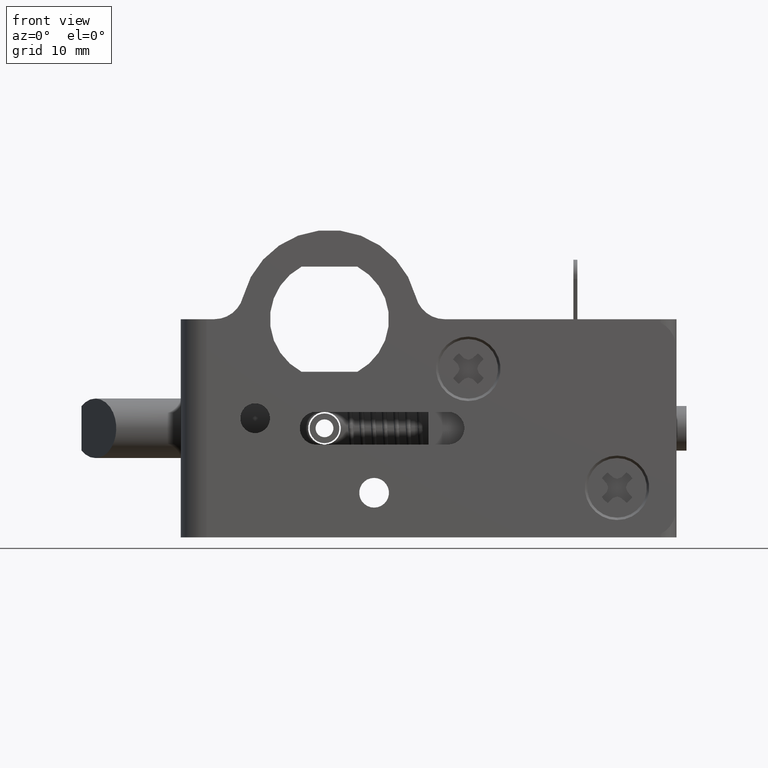
[diagram: clean part render]
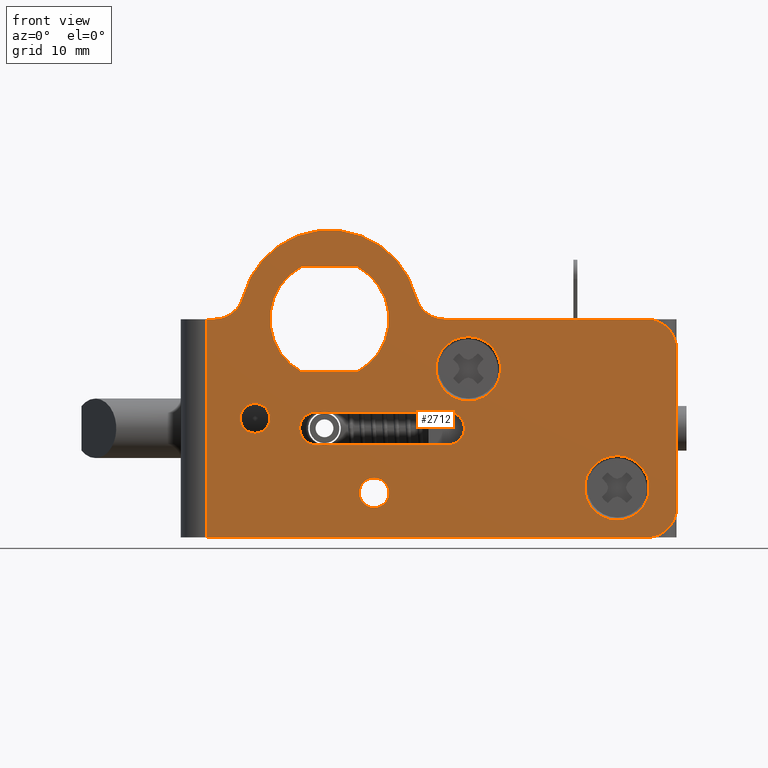
[diagram: same view with one face highlighted and labeled with its STEP entity id]
A machine part, front view. The second image highlights one B-rep face of the part: STEP entity #2712.
In plain terms, the highlighted planar face has unit normal (0, 1, 0).
Its self-contained STEP definition (entity closure, byte-faithful):
#9 = CARTESIAN_POINT ( 'NONE',  ( 14.00000000000000000, 0.0000000000000000000, -5.000000000000000000 ) ) ;
#13 = VERTEX_POINT ( 'NONE', #1386 ) ;
#219 = AXIS2_PLACEMENT_3D ( 'NONE', #4498, #10212, #5307 ) ;
#226 = VECTOR ( 'NONE', #830, 1000.000000000000000 ) ;
#254 = EDGE_CURVE ( 'NONE', #3641, #1145, #8044, .T. ) ;
#270 = DIRECTION ( 'NONE',  ( -0.0000000000000000000, -1.000000000000000000, -0.0000000000000000000 ) ) ;
#278 = CARTESIAN_POINT ( 'NONE',  ( -1.345540284950500000, -2.842170943040399500E-014, -12.64999400000002100 ) ) ;
#335 = CARTESIAN_POINT ( 'NONE',  ( 11.95001300000000000, 0.0000000000000000000, -11.00000000000000000 ) ) ;
#438 = VERTEX_POINT ( 'NONE', #899 ) ;
#482 = CARTESIAN_POINT ( 'NONE',  ( 0.0000000000000000000, 0.0000000000000000000, 0.0000000000000000000 ) ) ;
#485 = CIRCLE ( 'NONE', #7786, 1.650000000000000400 ) ;
#506 = CARTESIAN_POINT ( 'NONE',  ( 0.0000000000000000000, -2.842170943040399500E-014, -12.64999400000002100 ) ) ;
#512 = VERTEX_POINT ( 'NONE', #7134 ) ;
#518 = FACE_BOUND ( 'NONE', #7595, .T. ) ;
#560 = CARTESIAN_POINT ( 'NONE',  ( -1.349990000000000000, 0.0000000000000000000, -11.00000000000000000 ) ) ;
#635 = DIRECTION ( 'NONE',  ( 0.0000000000000000000, 0.0000000000000000000, 1.000000000000000000 ) ) ;
#641 = CARTESIAN_POINT ( 'NONE',  ( 4.499999999999944900, 0.0000000000000000000, -17.50000000000000000 ) ) ;
#652 = CARTESIAN_POINT ( 'NONE',  ( 11.95001300000000000, 0.0000000000000000000, -11.00000000000000000 ) ) ;
#676 = VERTEX_POINT ( 'NONE', #6847 ) ;
#680 = LINE ( 'NONE', #4792, #9325 ) ;
#727 = VERTEX_POINT ( 'NONE', #3662 ) ;
#753 = CARTESIAN_POINT ( 'NONE',  ( 29.00000000000000000, 2.168404344971008900E-016, -20.24999999999999600 ) ) ;
#793 = CARTESIAN_POINT ( 'NONE',  ( -7.499991999999999800, 0.0000000000000000000, -11.50000000000000000 ) ) ;
#830 = DIRECTION ( 'NONE',  ( -1.000000000000000000, -0.0000000000000000000, -0.0000000000000000000 ) ) ;
#855 = DIRECTION ( 'NONE',  ( 0.0000000000000000000, 0.0000000000000000000, -1.000000000000000000 ) ) ;
#863 = CARTESIAN_POINT ( 'NONE',  ( 11.95001300000000000, 0.0000000000000000000, -11.00000000000000000 ) ) ;
#899 = CARTESIAN_POINT ( 'NONE',  ( 11.61895784292025800, 0.0000000000000000000, 3.996802888650565100E-015 ) ) ;
#942 = EDGE_CURVE ( 'NONE', #9312, #4003, #3447, .T. ) ;
#970 = VERTEX_POINT ( 'NONE', #753 ) ;
#1003 = DIRECTION ( 'NONE',  ( -0.0000000000000000000, -1.000000000000000000, -0.0000000000000000000 ) ) ;
#1014 = CIRCLE ( 'NONE', #6719, 1.500000000000001300 ) ;
#1048 = ORIENTED_EDGE ( 'NONE', *, *, #942, .T. ) ;
#1081 = ORIENTED_EDGE ( 'NONE', *, *, #2394, .T. ) ;
#1145 = VERTEX_POINT ( 'NONE', #4347 ) ;
#1158 = ORIENTED_EDGE ( 'NONE', *, *, #254, .F. ) ;
#1166 = CIRCLE ( 'NONE', #8152, 3.000000000000000000 ) ;
#1167 = CARTESIAN_POINT ( 'NONE',  ( 2.812472222085044700, -2.842170943040399500E-014, 5.299999999999999800 ) ) ;
#1176 = DIRECTION ( 'NONE',  ( 0.0000000000000000000, 0.0000000000000000000, 1.000000000000000000 ) ) ;
#1200 = AXIS2_PLACEMENT_3D ( 'NONE', #10357, #5449, #635 ) ;
#1218 = EDGE_CURVE ( 'NONE', #5441, #3641, #4946, .T. ) ;
#1309 = DIRECTION ( 'NONE',  ( 0.0000000000000000000, 0.0000000000000000000, 1.000000000000000000 ) ) ;
#1330 = DIRECTION ( 'NONE',  ( 1.000000000000000000, -0.0000000000000000000, -0.0000000000000000000 ) ) ;
#1345 = EDGE_CURVE ( 'NONE', #2271, #4522, #1809, .T. ) ;
#1380 = DIRECTION ( 'NONE',  ( 0.0000000000000000000, 0.0000000000000000000, 1.000000000000000000 ) ) ;
#1386 = CARTESIAN_POINT ( 'NONE',  ( 14.00000000000000000, 2.168404344971008900E-016, -1.750000000000002000 ) ) ;
#1440 = VERTEX_POINT ( 'NONE', #2792 ) ;
#1461 = DIRECTION ( 'NONE',  ( 0.0000000000000000000, 0.0000000000000000000, 1.000000000000000000 ) ) ;
#1474 = DIRECTION ( 'NONE',  ( 0.0000000000000000000, 0.0000000000000000000, 1.000000000000000000 ) ) ;
#1497 = ORIENTED_EDGE ( 'NONE', *, *, #10457, .F. ) ;
#1537 = DIRECTION ( 'NONE',  ( 1.000000000000000000, -0.0000000000000000000, -0.0000000000000000000 ) ) ;
#1548 = AXIS2_PLACEMENT_3D ( 'NONE', #2745, #8418, #3542 ) ;
#1600 = VECTOR ( 'NONE', #6092, 1000.000000000000000 ) ;
#1674 = DIRECTION ( 'NONE',  ( 0.0000000000000000000, 0.0000000000000000000, 1.000000000000000000 ) ) ;
#1728 = LINE ( 'NONE', #8530, #5984 ) ;
#1806 = CARTESIAN_POINT ( 'NONE',  ( 0.0000000000000000000, 0.0000000000000000000, 0.0000000000000000000 ) ) ;
#1809 = CIRCLE ( 'NONE', #2284, 1.650000000000000400 ) ;
#1841 = EDGE_CURVE ( 'NONE', #9151, #2270, #7377, .T. ) ;
#1858 = ORIENTED_EDGE ( 'NONE', *, *, #8972, .F. ) ;
#1913 = VECTOR ( 'NONE', #2221, 1000.000000000000000 ) ;
#2000 = ORIENTED_EDGE ( 'NONE', *, *, #10530, .F. ) ;
#2096 = LINE ( 'NONE', #506, #3467 ) ;
#2099 = ORIENTED_EDGE ( 'NONE', *, *, #1345, .F. ) ;
#2104 = CARTESIAN_POINT ( 'NONE',  ( -1.349990086393790100, 0.0000000000000000000, -9.350000000000001400 ) ) ;
#2111 = VERTEX_POINT ( 'NONE', #5877 ) ;
#2144 = VERTEX_POINT ( 'NONE', #3498 ) ;
#2160 = AXIS2_PLACEMENT_3D ( 'NONE', #2206, #7874, #3012 ) ;
#2188 = ORIENTED_EDGE ( 'NONE', *, *, #5976, .F. ) ;
#2206 = CARTESIAN_POINT ( 'NONE',  ( 4.499999999999944900, 0.0000000000000000000, -17.50000000000000000 ) ) ;
#2221 = DIRECTION ( 'NONE',  ( -0.0000000000000000000, -0.0000000000000000000, -1.000000000000000000 ) ) ;
#2231 = VERTEX_POINT ( 'NONE', #2104 ) ;
#2270 = VERTEX_POINT ( 'NONE', #3016 ) ;
#2271 = VERTEX_POINT ( 'NONE', #8713 ) ;
#2284 = AXIS2_PLACEMENT_3D ( 'NONE', #560, #6184, #1380 ) ;
#2394 = EDGE_CURVE ( 'NONE', #7376, #4635, #1166, .T. ) ;
#2410 = LINE ( 'NONE', #9737, #226 ) ;
#2526 = CARTESIAN_POINT ( 'NONE',  ( 35.00000000000000000, 0.0000000000000000000, -19.00000000000000000 ) ) ;
#2541 = VERTEX_POINT ( 'NONE', #2526 ) ;
#2545 = CIRCLE ( 'NONE', #3192, 1.650000000000000400 ) ;
#2614 = DIRECTION ( 'NONE',  ( 0.0000000000000000000, 0.0000000000000000000, 1.000000000000000000 ) ) ;
#2672 = FACE_BOUND ( 'NONE', #9596, .T. ) ;
#2676 = EDGE_CURVE ( 'NONE', #4880, #9151, #9424, .T. ) ;
#2686 = ORIENTED_EDGE ( 'NONE', *, *, #6691, .F. ) ;
#2694 = DIRECTION ( 'NONE',  ( 0.0000000000000000000, -1.000000000000000000, 0.0000000000000000000 ) ) ;
#2712 = ADVANCED_FACE ( 'NONE', ( #4813, #5052, #2920, #2672, #518, #8918, #6688 ), #10172, .F. ) ;
#2744 = CARTESIAN_POINT ( 'NONE',  ( 14.00000000000000000, 2.168404344971008900E-016, -8.249999999999998200 ) ) ;
#2745 = CARTESIAN_POINT ( 'NONE',  ( -7.499991999999999800, 0.0000000000000000000, -10.00000000000000000 ) ) ;
#2780 = EDGE_CURVE ( 'NONE', #7376, #2541, #6180, .T. ) ;
#2792 = CARTESIAN_POINT ( 'NONE',  ( 31.99999984292029600, 0.0000000000000000000, -22.00000000000000000 ) ) ;
#2872 = EDGE_CURVE ( 'NONE', #1145, #727, #2545, .T. ) ;
#2908 = ORIENTED_EDGE ( 'NONE', *, *, #5704, .F. ) ;
#2913 = ORIENTED_EDGE ( 'NONE', *, *, #5804, .F. ) ;
#2920 = FACE_BOUND ( 'NONE', #7759, .T. ) ;
#2930 = AXIS2_PLACEMENT_3D ( 'NONE', #863, #6483, #1674 ) ;
#2975 = CARTESIAN_POINT ( 'NONE',  ( 32.00000000000000000, 0.0000000000000000000, -19.00000000000000000 ) ) ;
#3008 = EDGE_LOOP ( 'NONE', ( #4527, #4141 ) ) ;
#3012 = DIRECTION ( 'NONE',  ( 0.0000000000000000000, 0.0000000000000000000, 1.000000000000000000 ) ) ;
#3016 = CARTESIAN_POINT ( 'NONE',  ( -8.714212614807950200, 0.0000000000000000000, 2.249999667538200100 ) ) ;
#3149 = ORIENTED_EDGE ( 'NONE', *, *, #2780, .F. ) ;
#3192 = AXIS2_PLACEMENT_3D ( 'NONE', #652, #6283, #1474 ) ;
#3199 = EDGE_CURVE ( 'NONE', #1440, #2541, #7966, .T. ) ;
#3211 = VECTOR ( 'NONE', #1537, 1000.000000000000000 ) ;
#3447 = LINE ( 'NONE', #10438, #3211 ) ;
#3467 = VECTOR ( 'NONE', #1330, 1000.000000000000000 ) ;
#3498 = CARTESIAN_POINT ( 'NONE',  ( 2.812472222085044700, 0.0000000000000000000, -5.299999999999999800 ) ) ;
#3542 = DIRECTION ( 'NONE',  ( 0.0000000000000000000, 0.0000000000000000000, 1.000000000000000000 ) ) ;
#3560 = DIRECTION ( 'NONE',  ( 0.0000000000000000000, -1.000000000000000000, 0.0000000000000000000 ) ) ;
#3570 = CIRCLE ( 'NONE', #1200, 3.000000000000000000 ) ;
#3641 = VERTEX_POINT ( 'NONE', #5169 ) ;
#3662 = CARTESIAN_POINT ( 'NONE',  ( 11.94556328503484000, 0.0000000000000000000, -9.350000000000001400 ) ) ;
#3700 = EDGE_CURVE ( 'NONE', #2111, #2270, #10130, .T. ) ;
#3765 = DIRECTION ( 'NONE',  ( 0.0000000000000000000, 0.0000000000000000000, 1.000000000000000000 ) ) ;
#3900 = AXIS2_PLACEMENT_3D ( 'NONE', #9403, #4483, #10199 ) ;
#3975 = DIRECTION ( 'NONE',  ( -0.0000000000000000000, -1.000000000000000000, -0.0000000000000000000 ) ) ;
#4003 = VERTEX_POINT ( 'NONE', #1167 ) ;
#4021 = VERTEX_POINT ( 'NONE', #4379 ) ;
#4024 = ORIENTED_EDGE ( 'NONE', *, *, #8000, .F. ) ;
#4064 = ORIENTED_EDGE ( 'NONE', *, *, #1841, .F. ) ;
#4110 = AXIS2_PLACEMENT_3D ( 'NONE', #9033, #4116, #9833 ) ;
#4116 = DIRECTION ( 'NONE',  ( 0.0000000000000000000, -1.000000000000000000, 0.0000000000000000000 ) ) ;
#4133 = ORIENTED_EDGE ( 'NONE', *, *, #7184, .F. ) ;
#4141 = ORIENTED_EDGE ( 'NONE', *, *, #5378, .F. ) ;
#4347 = CARTESIAN_POINT ( 'NONE',  ( 11.95001300000000000, 0.0000000000000000000, -9.349999999999999600 ) ) ;
#4379 = CARTESIAN_POINT ( 'NONE',  ( 4.499999999999944900, 0.0000000000000000000, -16.00000000000000000 ) ) ;
#4415 = DIRECTION ( 'NONE',  ( 1.000000000000000000, -0.0000000000000000000, -0.0000000000000000000 ) ) ;
#4451 = DIRECTION ( 'NONE',  ( 1.000000000000000000, -0.0000000000000000000, -0.0000000000000000000 ) ) ;
#4483 = DIRECTION ( 'NONE',  ( -0.0000000000000000000, 1.000000000000000000, 0.0000000000000000000 ) ) ;
#4498 = CARTESIAN_POINT ( 'NONE',  ( -11.61894200000000100, 0.0000000000000000000, 3.000000000000000000 ) ) ;
#4514 = CIRCLE ( 'NONE', #9973, 3.249999999999999600 ) ;
#4522 = VERTEX_POINT ( 'NONE', #278 ) ;
#4527 = ORIENTED_EDGE ( 'NONE', *, *, #6317, .F. ) ;
#4528 = EDGE_LOOP ( 'NONE', ( #2686, #1497 ) ) ;
#4635 = VERTEX_POINT ( 'NONE', #6343 ) ;
#4658 = CARTESIAN_POINT ( 'NONE',  ( -7.499991999999999800, 0.0000000000000000000, -10.00000000000000000 ) ) ;
#4688 = ORIENTED_EDGE ( 'NONE', *, *, #5404, .F. ) ;
#4696 = AXIS2_PLACEMENT_3D ( 'NONE', #4658, #10372, #5466 ) ;
#4792 = CARTESIAN_POINT ( 'NONE',  ( -12.39999200000000100, -2.842170943040399500E-014, -22.00000000000000000 ) ) ;
#4813 = FACE_BOUND ( 'NONE', #4528, .T. ) ;
#4880 = VERTEX_POINT ( 'NONE', #9895 ) ;
#4893 = EDGE_LOOP ( 'NONE', ( #4688, #1048, #2000, #5152 ) ) ;
#4909 = CIRCLE ( 'NONE', #8602, 3.249999999999999600 ) ;
#4946 = CIRCLE ( 'NONE', #6237, 1.650000000000000400 ) ;
#5052 = FACE_OUTER_BOUND ( 'NONE', #9353, .T. ) ;
#5078 = CIRCLE ( 'NONE', #6827, 6.000000000000000000 ) ;
#5110 = CARTESIAN_POINT ( 'NONE',  ( 0.0000000000000000000, 0.0000000000000000000, 0.0000000000000000000 ) ) ;
#5152 = ORIENTED_EDGE ( 'NONE', *, *, #9179, .T. ) ;
#5169 = CARTESIAN_POINT ( 'NONE',  ( 11.95001300000000000, 0.0000000000000000000, -12.65000000000000000 ) ) ;
#5298 = VECTOR ( 'NONE', #4415, 1000.000000000000000 ) ;
#5307 = DIRECTION ( 'NONE',  ( 0.0000000000000000000, 0.0000000000000000000, 1.000000000000000000 ) ) ;
#5343 = ORIENTED_EDGE ( 'NONE', *, *, #1218, .F. ) ;
#5378 = EDGE_CURVE ( 'NONE', #512, #970, #4909, .T. ) ;
#5404 = EDGE_CURVE ( 'NONE', #9312, #676, #7078, .T. ) ;
#5441 = VERTEX_POINT ( 'NONE', #7652 ) ;
#5449 = DIRECTION ( 'NONE',  ( -0.0000000000000000000, -1.000000000000000000, -0.0000000000000000000 ) ) ;
#5466 = DIRECTION ( 'NONE',  ( 0.0000000000000000000, 0.0000000000000000000, 1.000000000000000000 ) ) ;
#5472 = CIRCLE ( 'NONE', #1548, 1.499999999999999600 ) ;
#5662 = DIRECTION ( 'NONE',  ( 0.0000000000000000000, -1.000000000000000000, 0.0000000000000000000 ) ) ;
#5676 = AXIS2_PLACEMENT_3D ( 'NONE', #2975, #8665, #3765 ) ;
#5704 = EDGE_CURVE ( 'NONE', #9794, #4021, #1014, .T. ) ;
#5777 = ORIENTED_EDGE ( 'NONE', *, *, #7168, .F. ) ;
#5793 = VERTEX_POINT ( 'NONE', #793 ) ;
#5804 = EDGE_CURVE ( 'NONE', #727, #2231, #2410, .T. ) ;
#5809 = CARTESIAN_POINT ( 'NONE',  ( -1.349990000000000000, 0.0000000000000000000, -11.00000000000000000 ) ) ;
#5828 = CIRCLE ( 'NONE', #4110, 3.250000000000000400 ) ;
#5843 = LINE ( 'NONE', #10195, #1600 ) ;
#5877 = CARTESIAN_POINT ( 'NONE',  ( 8.714212575538049100, 0.0000000000000000000, 2.249999819629894900 ) ) ;
#5886 = VERTEX_POINT ( 'NONE', #10094 ) ;
#5916 = DIRECTION ( 'NONE',  ( 0.0000000000000000000, 0.0000000000000000000, 1.000000000000000000 ) ) ;
#5975 = DIRECTION ( 'NONE',  ( -0.0000000000000000000, -1.000000000000000000, -0.0000000000000000000 ) ) ;
#5976 = EDGE_CURVE ( 'NONE', #7036, #5793, #9267, .T. ) ;
#5984 = VECTOR ( 'NONE', #4451, 1000.000000000000000 ) ;
#6092 = DIRECTION ( 'NONE',  ( -1.000000000000000000, -0.0000000000000000000, -0.0000000000000000000 ) ) ;
#6109 = DIRECTION ( 'NONE',  ( -0.0000000000000000000, -1.000000000000000000, -0.0000000000000000000 ) ) ;
#6180 = LINE ( 'NONE', #7884, #1913 ) ;
#6184 = DIRECTION ( 'NONE',  ( -0.0000000000000000000, -1.000000000000000000, -0.0000000000000000000 ) ) ;
#6205 = EDGE_CURVE ( 'NONE', #2231, #2271, #485, .T. ) ;
#6237 = AXIS2_PLACEMENT_3D ( 'NONE', #335, #5975, #1176 ) ;
#6268 = DIRECTION ( 'NONE',  ( -0.0000000000000000000, -1.000000000000000000, -0.0000000000000000000 ) ) ;
#6283 = DIRECTION ( 'NONE',  ( -0.0000000000000000000, -1.000000000000000000, -0.0000000000000000000 ) ) ;
#6317 = EDGE_CURVE ( 'NONE', #970, #512, #4514, .T. ) ;
#6343 = CARTESIAN_POINT ( 'NONE',  ( 32.00000000000000000, 0.0000000000000000000, 0.0000000000000000000 ) ) ;
#6483 = DIRECTION ( 'NONE',  ( -0.0000000000000000000, -1.000000000000000000, -0.0000000000000000000 ) ) ;
#6490 = ORIENTED_EDGE ( 'NONE', *, *, #3199, .T. ) ;
#6616 = VECTOR ( 'NONE', #9752, 1000.000000000000000 ) ;
#6625 = DIRECTION ( 'NONE',  ( 0.0000000000000000000, 0.0000000000000000000, 1.000000000000000000 ) ) ;
#6688 = FACE_BOUND ( 'NONE', #3008, .T. ) ;
#6691 = EDGE_CURVE ( 'NONE', #9760, #13, #6916, .T. ) ;
#6719 = AXIS2_PLACEMENT_3D ( 'NONE', #641, #6268, #1461 ) ;
#6804 = ORIENTED_EDGE ( 'NONE', *, *, #2676, .F. ) ;
#6827 = AXIS2_PLACEMENT_3D ( 'NONE', #1806, #7466, #2614 ) ;
#6847 = CARTESIAN_POINT ( 'NONE',  ( -2.812472222085044700, 0.0000000000000000000, -5.299999999999999800 ) ) ;
#6916 = CIRCLE ( 'NONE', #7927, 3.250000000000000400 ) ;
#7036 = VERTEX_POINT ( 'NONE', #7591 ) ;
#7078 = CIRCLE ( 'NONE', #9711, 6.000000000000000000 ) ;
#7134 = CARTESIAN_POINT ( 'NONE',  ( 29.00000000000000000, 2.168404344971008900E-016, -13.75000000000000500 ) ) ;
#7168 = EDGE_CURVE ( 'NONE', #1440, #5886, #5843, .T. ) ;
#7184 = EDGE_CURVE ( 'NONE', #4522, #5441, #2096, .T. ) ;
#7376 = VERTEX_POINT ( 'NONE', #10480 ) ;
#7377 = CIRCLE ( 'NONE', #219, 3.000000000000000000 ) ;
#7466 = DIRECTION ( 'NONE',  ( -0.0000000000000000000, -1.000000000000000000, -0.0000000000000000000 ) ) ;
#7546 = CARTESIAN_POINT ( 'NONE',  ( 29.00000000000000000, 0.0000000000000000000, -17.00000000000000000 ) ) ;
#7591 = CARTESIAN_POINT ( 'NONE',  ( -7.499991999999999800, 0.0000000000000000000, -8.500000000000000000 ) ) ;
#7595 = EDGE_LOOP ( 'NONE', ( #5343, #4133, #2099, #8637, #2913, #8326, #1158 ) ) ;
#7652 = CARTESIAN_POINT ( 'NONE',  ( 11.94556328495051800, 0.0000000000000000000, -12.64999400000002100 ) ) ;
#7701 = CARTESIAN_POINT ( 'NONE',  ( 0.0000000000000000000, -2.842170943040399500E-014, 0.0000000000000000000 ) ) ;
#7759 = EDGE_LOOP ( 'NONE', ( #8023, #2188 ) ) ;
#7786 = AXIS2_PLACEMENT_3D ( 'NONE', #5809, #1003, #6625 ) ;
#7874 = DIRECTION ( 'NONE',  ( -0.0000000000000000000, -1.000000000000000000, -0.0000000000000000000 ) ) ;
#7884 = CARTESIAN_POINT ( 'NONE',  ( 35.00000000000000000, -2.842170943040399500E-014, 0.0000000000000000000 ) ) ;
#7927 = AXIS2_PLACEMENT_3D ( 'NONE', #9, #5662, #855 ) ;
#7966 = CIRCLE ( 'NONE', #5676, 2.999999999999999100 ) ;
#8000 = EDGE_CURVE ( 'NONE', #2111, #438, #3570, .T. ) ;
#8023 = ORIENTED_EDGE ( 'NONE', *, *, #8319, .F. ) ;
#8044 = CIRCLE ( 'NONE', #2930, 1.650000000000000400 ) ;
#8101 = CARTESIAN_POINT ( 'NONE',  ( 0.0000000000000000000, -2.842170943040399500E-014, -5.299999999999999800 ) ) ;
#8142 = EDGE_CURVE ( 'NONE', #4880, #5886, #680, .T. ) ;
#8152 = AXIS2_PLACEMENT_3D ( 'NONE', #8893, #3975, #9706 ) ;
#8319 = EDGE_CURVE ( 'NONE', #5793, #7036, #5472, .T. ) ;
#8326 = ORIENTED_EDGE ( 'NONE', *, *, #2872, .F. ) ;
#8372 = DIRECTION ( 'NONE',  ( 0.0000000000000000000, 0.0000000000000000000, -1.000000000000000000 ) ) ;
#8418 = DIRECTION ( 'NONE',  ( -0.0000000000000000000, -1.000000000000000000, -0.0000000000000000000 ) ) ;
#8439 = CARTESIAN_POINT ( 'NONE',  ( 29.00000000000000000, 0.0000000000000000000, -17.00000000000000000 ) ) ;
#8530 = CARTESIAN_POINT ( 'NONE',  ( 0.0000000000000000000, -2.842170943040399500E-014, 0.0000000000000000000 ) ) ;
#8602 = AXIS2_PLACEMENT_3D ( 'NONE', #7546, #2694, #8372 ) ;
#8637 = ORIENTED_EDGE ( 'NONE', *, *, #6205, .F. ) ;
#8665 = DIRECTION ( 'NONE',  ( -0.0000000000000000000, -1.000000000000000000, -0.0000000000000000000 ) ) ;
#8705 = CIRCLE ( 'NONE', #2160, 1.500000000000001300 ) ;
#8713 = CARTESIAN_POINT ( 'NONE',  ( -1.349990000000000000, 0.0000000000000000000, -12.65000000000000000 ) ) ;
#8825 = CARTESIAN_POINT ( 'NONE',  ( -11.61894200000000100, 0.0000000000000000000, 0.0000000000000000000 ) ) ;
#8893 = CARTESIAN_POINT ( 'NONE',  ( 32.00000000000000000, 0.0000000000000000000, -3.000000000000000000 ) ) ;
#8918 = FACE_BOUND ( 'NONE', #4893, .T. ) ;
#8972 = EDGE_CURVE ( 'NONE', #438, #4635, #1728, .T. ) ;
#9023 = ORIENTED_EDGE ( 'NONE', *, *, #9434, .F. ) ;
#9033 = CARTESIAN_POINT ( 'NONE',  ( 14.00000000000000000, 0.0000000000000000000, -5.000000000000000000 ) ) ;
#9140 = CARTESIAN_POINT ( 'NONE',  ( -2.812472222085044700, 0.0000000000000000000, 5.299999999999999800 ) ) ;
#9151 = VERTEX_POINT ( 'NONE', #8825 ) ;
#9179 = EDGE_CURVE ( 'NONE', #2144, #676, #10485, .T. ) ;
#9267 = CIRCLE ( 'NONE', #4696, 1.499999999999999600 ) ;
#9278 = DIRECTION ( 'NONE',  ( 0.0000000000000000000, 0.0000000000000000000, -1.000000000000000000 ) ) ;
#9312 = VERTEX_POINT ( 'NONE', #9140 ) ;
#9325 = VECTOR ( 'NONE', #10540, 1000.000000000000000 ) ;
#9353 = EDGE_LOOP ( 'NONE', ( #6804, #10277, #5777, #6490, #3149, #1081, #1858, #4024, #9487, #4064 ) ) ;
#9383 = AXIS2_PLACEMENT_3D ( 'NONE', #482, #6109, #1309 ) ;
#9403 = CARTESIAN_POINT ( 'NONE',  ( 0.0000000000000000000, -2.842170943040399500E-014, 0.0000000000000000000 ) ) ;
#9424 = LINE ( 'NONE', #7701, #5298 ) ;
#9434 = EDGE_CURVE ( 'NONE', #4021, #9794, #8705, .T. ) ;
#9487 = ORIENTED_EDGE ( 'NONE', *, *, #3700, .T. ) ;
#9596 = EDGE_LOOP ( 'NONE', ( #2908, #9023 ) ) ;
#9706 = DIRECTION ( 'NONE',  ( 0.0000000000000000000, 0.0000000000000000000, 1.000000000000000000 ) ) ;
#9711 = AXIS2_PLACEMENT_3D ( 'NONE', #5110, #270, #5916 ) ;
#9737 = CARTESIAN_POINT ( 'NONE',  ( 0.0000000000000000000, -2.842170943040399500E-014, -9.350000000000001400 ) ) ;
#9752 = DIRECTION ( 'NONE',  ( -1.000000000000000000, -0.0000000000000000000, -0.0000000000000000000 ) ) ;
#9760 = VERTEX_POINT ( 'NONE', #2744 ) ;
#9794 = VERTEX_POINT ( 'NONE', #10173 ) ;
#9833 = DIRECTION ( 'NONE',  ( 0.0000000000000000000, 0.0000000000000000000, -1.000000000000000000 ) ) ;
#9895 = CARTESIAN_POINT ( 'NONE',  ( -12.39999200000000100, -2.842170943040399500E-014, 0.0000000000000000000 ) ) ;
#9973 = AXIS2_PLACEMENT_3D ( 'NONE', #8439, #3560, #9278 ) ;
#10094 = CARTESIAN_POINT ( 'NONE',  ( -12.39999200000000100, -2.842170943040399500E-014, -22.00000000000000000 ) ) ;
#10130 = CIRCLE ( 'NONE', #9383, 9.000000000000000000 ) ;
#10172 = PLANE ( 'NONE',  #3900 ) ;
#10173 = CARTESIAN_POINT ( 'NONE',  ( 4.499999999999944900, 0.0000000000000000000, -19.00000000000000400 ) ) ;
#10195 = CARTESIAN_POINT ( 'NONE',  ( 0.0000000000000000000, -2.842170943040399500E-014, -22.00000000000000000 ) ) ;
#10199 = DIRECTION ( 'NONE',  ( 1.000000000000000000, 0.0000000000000000000, 0.0000000000000000000 ) ) ;
#10212 = DIRECTION ( 'NONE',  ( -0.0000000000000000000, -1.000000000000000000, -0.0000000000000000000 ) ) ;
#10277 = ORIENTED_EDGE ( 'NONE', *, *, #8142, .T. ) ;
#10357 = CARTESIAN_POINT ( 'NONE',  ( 11.61895799999990000, 0.0000000000000000000, 3.000000000000000000 ) ) ;
#10372 = DIRECTION ( 'NONE',  ( -0.0000000000000000000, -1.000000000000000000, -0.0000000000000000000 ) ) ;
#10438 = CARTESIAN_POINT ( 'NONE',  ( 0.0000000000000000000, -2.842170943040399500E-014, 5.299999999999999800 ) ) ;
#10457 = EDGE_CURVE ( 'NONE', #13, #9760, #5828, .T. ) ;
#10480 = CARTESIAN_POINT ( 'NONE',  ( 35.00000000000000000, 0.0000000000000000000, -3.000000000000000000 ) ) ;
#10485 = LINE ( 'NONE', #8101, #6616 ) ;
#10530 = EDGE_CURVE ( 'NONE', #2144, #4003, #5078, .T. ) ;
#10540 = DIRECTION ( 'NONE',  ( -0.0000000000000000000, -0.0000000000000000000, -1.000000000000000000 ) ) ;